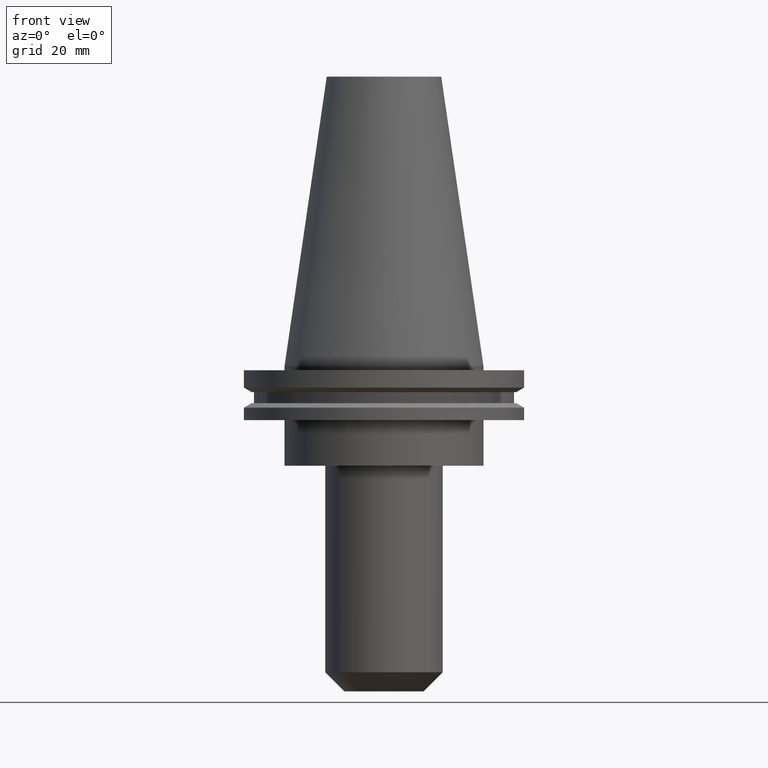
[diagram: clean part render]
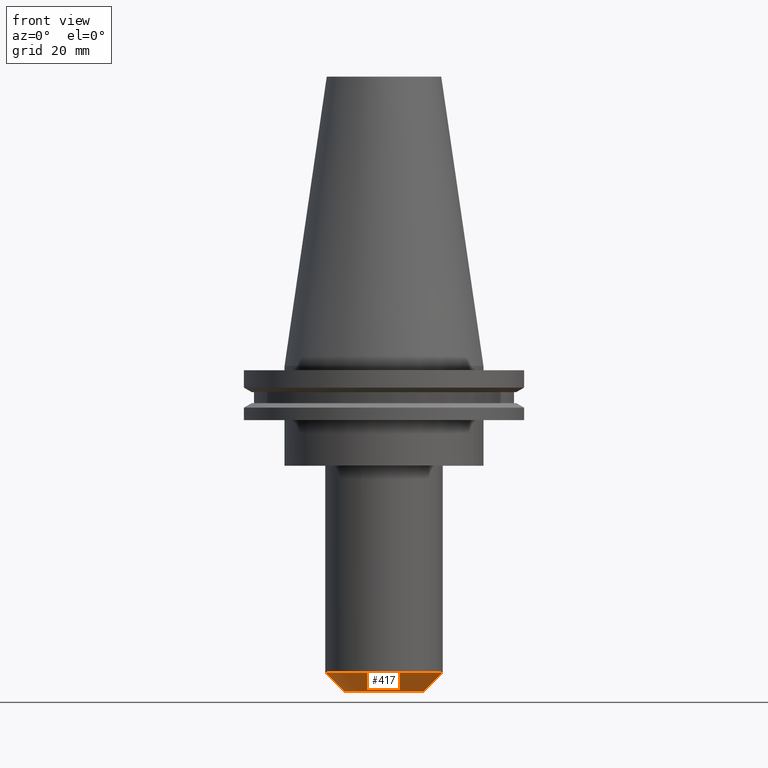
[diagram: same view with one face highlighted and labeled with its STEP entity id]
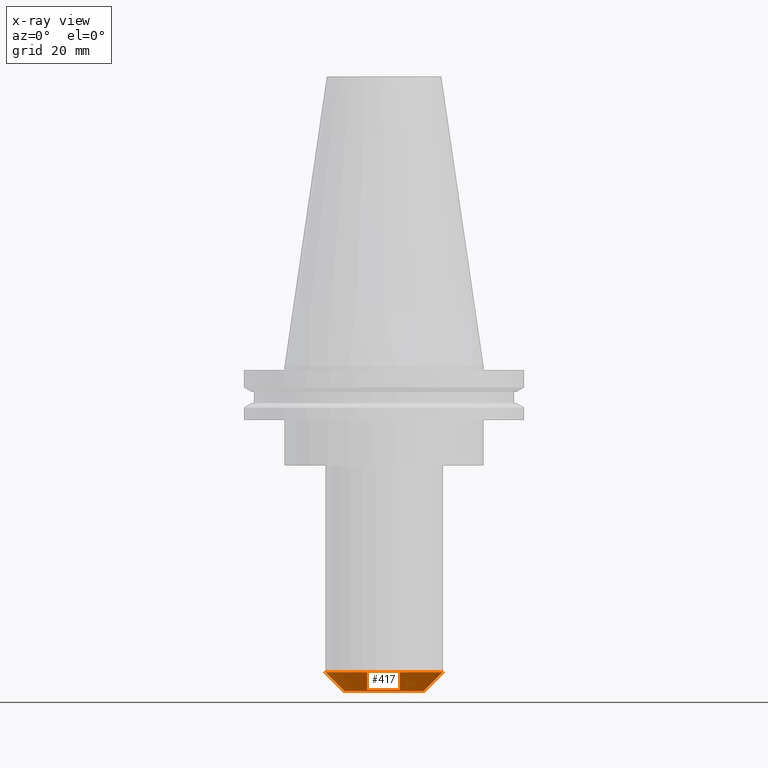
[diagram: x-ray of the same camera — body ghosted, the highlighted face saturated]
A machine part, front view. The second image highlights one B-rep face of the part: STEP entity #417.
The next image is the same camera in x-ray: the body ghosted, the highlighted face saturated — about 0% of this face is hidden behind the body in this view.
In plain terms, the highlighted conical surface has half-angle 45 deg.
Its self-contained STEP definition (entity closure, byte-faithful):
#51 = CIRCLE ( 'NONE', #606, 20.64999999999999503 ) ;
#108 = EDGE_CURVE ( 'NONE', #173, #704, #793, .T. ) ;
#138 = ORIENTED_EDGE ( 'NONE', *, *, #300, .F. ) ;
#155 = EDGE_LOOP ( 'NONE', ( #812, #581, #820, #138 ) ) ;
#158 = DIRECTION ( 'NONE',  ( -0.000000000000000000, -0.000000000000000000, 1.000000000000000000 ) ) ;
#173 = VERTEX_POINT ( 'NONE', #407 ) ;
#189 = AXIS2_PLACEMENT_3D ( 'NONE', #842, #510, #444 ) ;
#200 = DIRECTION ( 'NONE',  ( -0.7071067811865486830, 8.659560562354947649E-17, 0.7071067811865464625 ) ) ;
#201 = CONICAL_SURFACE ( 'NONE', #189, 13.94999999999997620, 0.7853981633974498333 ) ;
#271 = EDGE_CURVE ( 'NONE', #173, #330, #734, .T. ) ;
#297 = CARTESIAN_POINT ( 'NONE',  ( -20.64999999999999503, 2.528895640239283728E-15, -107.5999999999999943 ) ) ;
#300 = EDGE_CURVE ( 'NONE', #704, #571, #51, .T. ) ;
#330 = VERTEX_POINT ( 'NONE', #760 ) ;
#407 = CARTESIAN_POINT ( 'NONE',  ( -13.94999999999997620, 2.118638962524919167E-15, -114.2999999999999972 ) ) ;
#417 = ADVANCED_FACE ( 'NONE', ( #837 ), #201, .T. ) ;
#420 = DIRECTION ( 'NONE',  ( 1.000000000000000000, 0.000000000000000000, 0.000000000000000000 ) ) ;
#431 = CARTESIAN_POINT ( 'NONE',  ( 0.000000000000000000, 0.000000000000000000, -107.5999999999999943 ) ) ;
#444 = DIRECTION ( 'NONE',  ( 1.000000000000000000, 0.000000000000000000, 0.000000000000000000 ) ) ;
#485 = LINE ( 'NONE', #603, #754 ) ;
#492 = CARTESIAN_POINT ( 'NONE',  ( 0.000000000000000000, 0.000000000000000000, -114.2999999999999972 ) ) ;
#501 = DIRECTION ( 'NONE',  ( -0.000000000000000000, -0.000000000000000000, 1.000000000000000000 ) ) ;
#510 = DIRECTION ( 'NONE',  ( -0.000000000000000000, -0.000000000000000000, 1.000000000000000000 ) ) ;
#542 = CARTESIAN_POINT ( 'NONE',  ( -13.94999999999997620, 1.708382284810554804E-15, -114.2999999999999972 ) ) ;
#566 = EDGE_CURVE ( 'NONE', #330, #571, #485, .T. ) ;
#571 = VERTEX_POINT ( 'NONE', #661 ) ;
#581 = ORIENTED_EDGE ( 'NONE', *, *, #271, .T. ) ;
#603 = CARTESIAN_POINT ( 'NONE',  ( 13.94999999999997620, 0.000000000000000000, -114.2999999999999972 ) ) ;
#606 = AXIS2_PLACEMENT_3D ( 'NONE', #431, #158, #420 ) ;
#661 = CARTESIAN_POINT ( 'NONE',  ( 20.64999999999999503, 0.000000000000000000, -107.5999999999999943 ) ) ;
#704 = VERTEX_POINT ( 'NONE', #297 ) ;
#729 = DIRECTION ( 'NONE',  ( 0.7071067811865486830, 0.000000000000000000, 0.7071067811865464625 ) ) ;
#734 = CIRCLE ( 'NONE', #821, 13.94999999999997620 ) ;
#754 = VECTOR ( 'NONE', #729, 1000.000000000000000 ) ;
#756 = DIRECTION ( 'NONE',  ( 1.000000000000000000, 0.000000000000000000, 0.000000000000000000 ) ) ;
#758 = VECTOR ( 'NONE', #200, 1000.000000000000000 ) ;
#760 = CARTESIAN_POINT ( 'NONE',  ( 13.94999999999997620, 0.000000000000000000, -114.2999999999999972 ) ) ;
#793 = LINE ( 'NONE', #542, #758 ) ;
#812 = ORIENTED_EDGE ( 'NONE', *, *, #108, .F. ) ;
#820 = ORIENTED_EDGE ( 'NONE', *, *, #566, .T. ) ;
#821 = AXIS2_PLACEMENT_3D ( 'NONE', #492, #501, #756 ) ;
#837 = FACE_OUTER_BOUND ( 'NONE', #155, .T. ) ;
#842 = CARTESIAN_POINT ( 'NONE',  ( 0.000000000000000000, 0.000000000000000000, -114.2999999999999972 ) ) ;